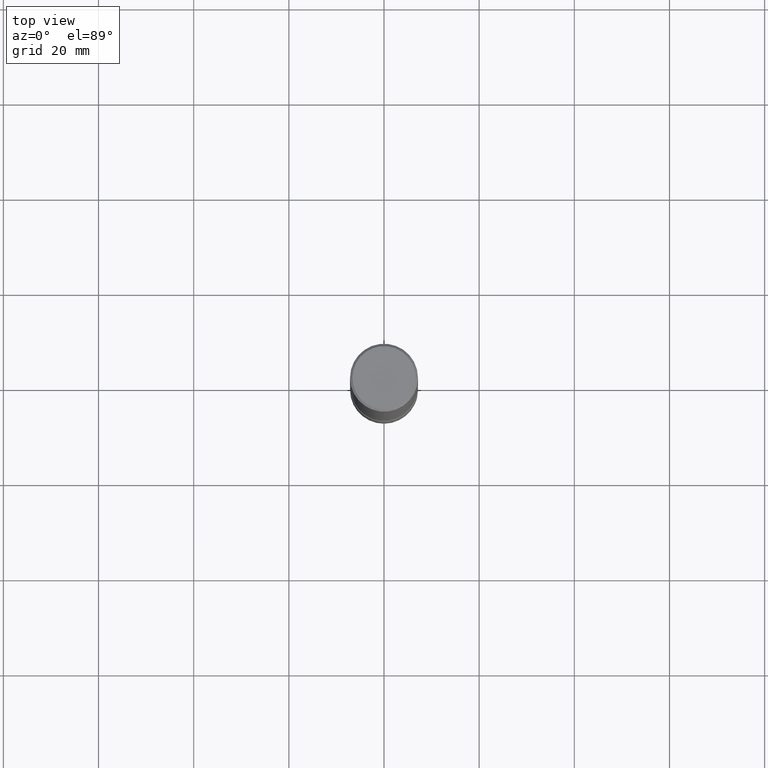
[diagram: clean part render]
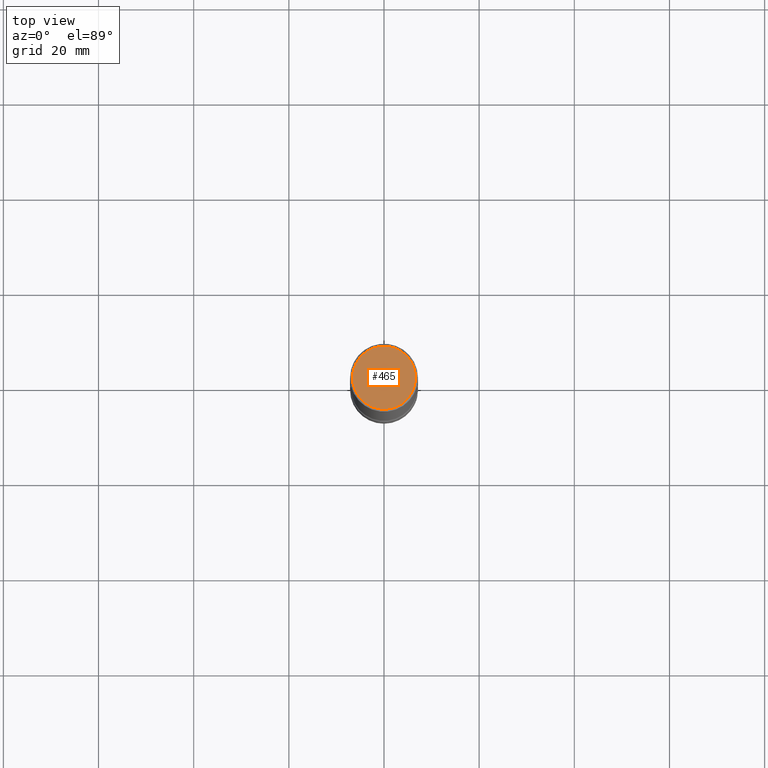
[diagram: same view with one face highlighted and labeled with its STEP entity id]
A machine part, top view. The second image highlights one B-rep face of the part: STEP entity #465.
In plain terms, the highlighted planar face has unit normal (-0, 0, 1).
Its self-contained STEP definition (entity closure, byte-faithful):
#4 = AXIS2_PLACEMENT_3D ( 'NONE', #535, #7, #485 ) ;
#7 = DIRECTION ( 'NONE',  ( -2.438088387897960049E-29, 3.491481338843145188E-15, 1.000000000000000000 ) ) ;
#9 = PLANE ( 'NONE',  #4 ) ;
#27 = ORIENTED_EDGE ( 'NONE', *, *, #325, .F. ) ;
#78 = CIRCLE ( 'NONE', #502, 0.2612499999999995937 ) ;
#129 = EDGE_CURVE ( 'NONE', #542, #226, #78, .T. ) ;
#148 = DIRECTION ( 'NONE',  ( 2.445468806185136597E-29, -3.491481338843145583E-15, -1.000000000000000000 ) ) ;
#203 = DIRECTION ( 'NONE',  ( -1.000000000000000000, 6.982962677686265133E-15, -4.876176775795934672E-29 ) ) ;
#204 = AXIS2_PLACEMENT_3D ( 'NONE', #365, #148, #319 ) ;
#226 = VERTEX_POINT ( 'NONE', #277 ) ;
#233 = ORIENTED_EDGE ( 'NONE', *, *, #129, .F. ) ;
#259 = CARTESIAN_POINT ( 'NONE',  ( 0.2612499999999995937, -1.895824895283957203E-15, 1.300802449975685690E-29 ) ) ;
#276 = CIRCLE ( 'NONE', #204, 0.2612499999999995937 ) ;
#277 = CARTESIAN_POINT ( 'NONE',  ( -0.2612499999999995937, 1.824298999545533944E-15, -1.273901182676685998E-29 ) ) ;
#319 = DIRECTION ( 'NONE',  ( -1.000000000000000000, 6.982962677686265133E-15, -4.876176775795934672E-29 ) ) ;
#325 = EDGE_CURVE ( 'NONE', #226, #542, #276, .T. ) ;
#349 = FACE_OUTER_BOUND ( 'NONE', #522, .T. ) ;
#365 = CARTESIAN_POINT ( 'NONE',  ( 0.000000000000000000, 0.000000000000000000, 0.000000000000000000 ) ) ;
#465 = ADVANCED_FACE ( 'NONE', ( #349 ), #9, .T. ) ;
#479 = CARTESIAN_POINT ( 'NONE',  ( 0.000000000000000000, 0.000000000000000000, 0.000000000000000000 ) ) ;
#485 = DIRECTION ( 'NONE',  ( 1.000000000000000000, -6.982962677686265922E-15, 4.876176775795935793E-29 ) ) ;
#502 = AXIS2_PLACEMENT_3D ( 'NONE', #479, #563, #203 ) ;
#522 = EDGE_LOOP ( 'NONE', ( #27, #233 ) ) ;
#535 = CARTESIAN_POINT ( 'NONE',  ( 1.824298999545533944E-15, 0.2612499999999995937, -9.121494997727703246E-16 ) ) ;
#542 = VERTEX_POINT ( 'NONE', #259 ) ;
#563 = DIRECTION ( 'NONE',  ( 2.445468806185136597E-29, -3.491481338843145583E-15, -1.000000000000000000 ) ) ;